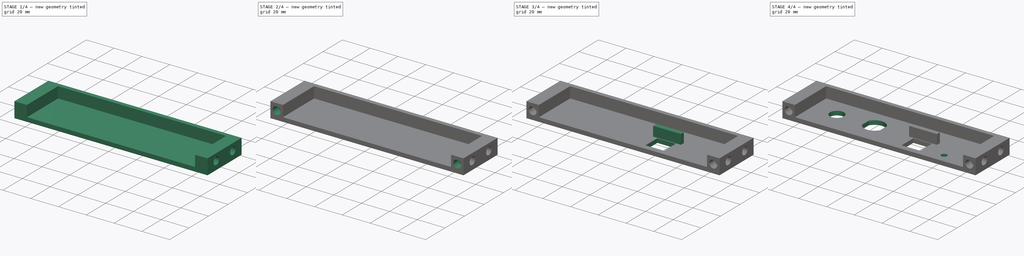
[diagram: build sequence overview — one tinted view per stage of 4, left to right]
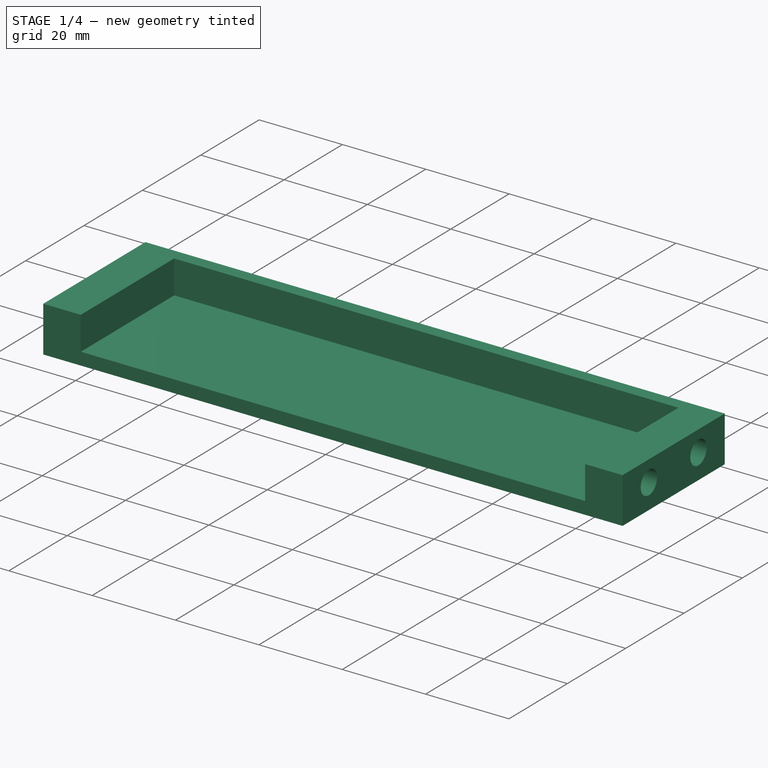
[diagram: stage 1 of 4 — iso view after this stage's code; geometry added in this stage tinted green]
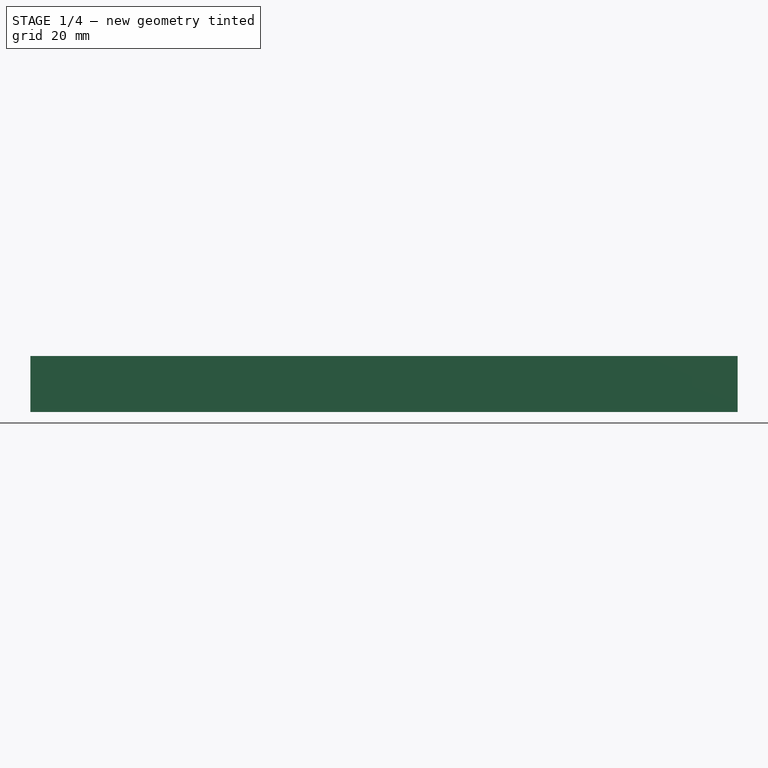
[diagram: stage 1 of 4 — front view after this stage's code; geometry added in this stage tinted green]
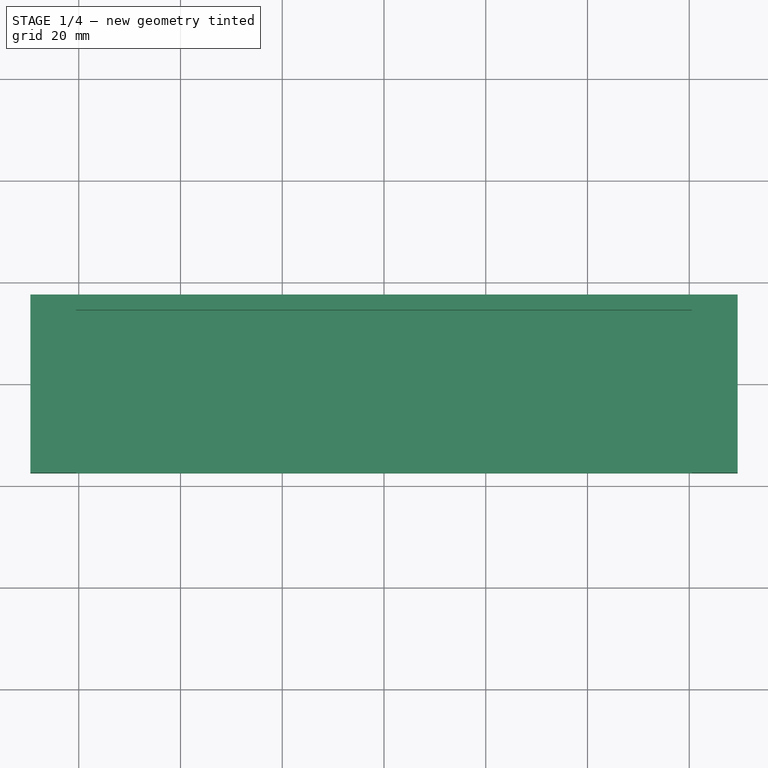
[diagram: stage 1 of 4 — top view after this stage's code; geometry added in this stage tinted green]
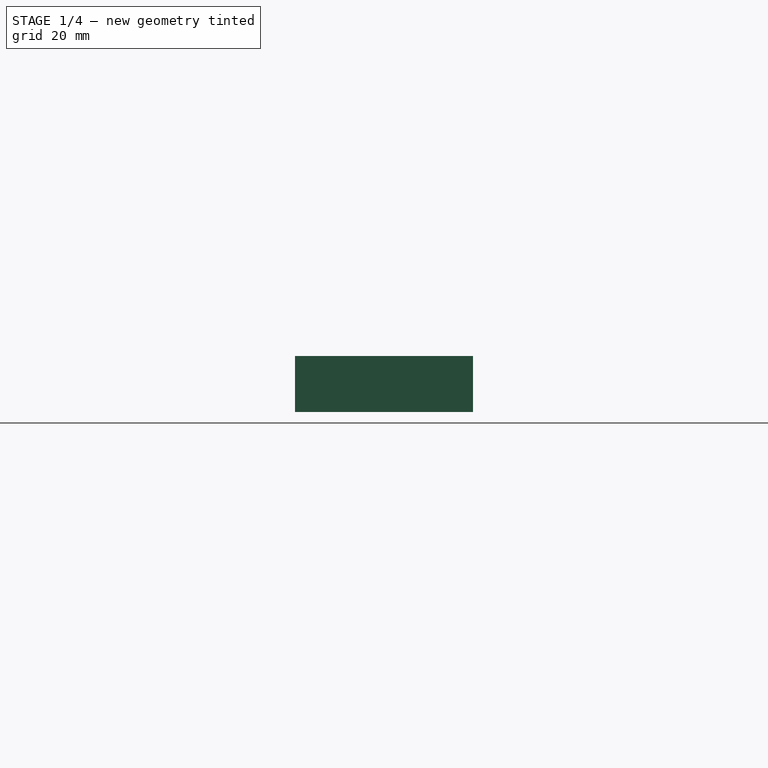
[diagram: stage 1 of 4 — right view after this stage's code; geometry added in this stage tinted green]
FCSTD DOCUMENT
Label: ElectronicEnclosurePowerCordSide
objects: Sketcher::SketchObject×9, PartDesign::Pocket×7, PartDesign::Mirrored×3, PartDesign::Pad×2, PartDesign::MultiTransform×1
note: 31 computed .brp shape members not serialized (recipe doc carries the construction recipe); baked Part::Feature solids carry a one-line shape summary decoded from their .brp

FEATURE [Sketcher::SketchObject] Sketch
  sketch-geometry (4):
    g0: LineSegment StartX=-69.5 StartY=-17.5 StartZ=0 EndX=69.5 EndY=-17.5 EndZ=0
    g1: LineSegment StartX=69.5 StartY=-17.5 StartZ=0 EndX=69.5 EndY=17.5 EndZ=0
    g2: LineSegment StartX=69.5 StartY=17.5 StartZ=0 EndX=-69.5 EndY=17.5 EndZ=0
    g3: LineSegment StartX=-69.5 StartY=17.5 StartZ=0 EndX=-69.5 EndY=-17.5 EndZ=0
  constraints (11):
    c: Coincident(g0,g1)
    c: Coincident(g1,g2)
    c: Coincident(g2,g3)
    c: Coincident(g3,g0)
    c: Horizontal(g0)
    c: Horizontal(g2)
    c: Vertical(g1)
    c: Vertical(g3)
    c: Symmetric(g0,g1,g-1)
    c: DistanceY(g1) = 35
    c: DistanceX(g2) = -139
FEATURE [PartDesign::Pad] Pad
  Length = 11
  Length2 = 100
  Sketch = -> Sketch
  Type = 0
FEATURE [Sketcher::SketchObject] Sketch001
  ExternalGeometry = -> [Pad]
  Placement = pos=(0,0,11) rot=(0,0,1;0rad)
  Support = -> Pad [Face6]
  sketch-geometry (4):
    g0: LineSegment StartX=-60.5 StartY=-17.5 StartZ=0 EndX=60.5 EndY=-17.5 EndZ=0
    g1: LineSegment StartX=60.5 StartY=-17.5 StartZ=0 EndX=60.5 EndY=14.5 EndZ=0
    g2: LineSegment StartX=60.5 StartY=14.5 StartZ=0 EndX=-60.5 EndY=14.5 EndZ=0
    g3: LineSegment StartX=-60.5 StartY=14.5 StartZ=0 EndX=-60.5 EndY=-17.5 EndZ=0
  constraints (12):
    c: Coincident(g0,g1)
    c: Coincident(g1,g2)
    c: Coincident(g2,g3)
    c: Coincident(g3,g0)
    c: Horizontal(g0)
    c: Horizontal(g2)
    c: Vertical(g1)
    c: Vertical(g3)
    c: Symmetric(g2,g1,g-2)
    c: DistanceX(g2,g-3) = -9
    c: DistanceY(g2,g-3) = 3
    c: PointOnObject(g-3,g0)
FEATURE [PartDesign::Pocket] Pocket
  Length = 8
  Sketch = -> Sketch001
  Type = 0
FEATURE [Sketcher::SketchObject] Sketch002
  Placement = pos=(69.5,0,0) rot=(0.57735,0.57735,0.57735;2.0944rad)
  Support = -> Pocket [Face1]
  sketch-geometry (3):
    g0: Circle CenterX=-8.5 CenterY=6 CenterZ=0 NormalX=0 NormalY=0 NormalZ=1 Radius=2.8
    g1: Circle CenterX=8.5 CenterY=6 CenterZ=0 NormalX=0 NormalY=0 NormalZ=1 Radius=2.8
    g2: LineSegment [constr] StartX=-8.5 StartY=6 StartZ=0 EndX=8.5 EndY=6 EndZ=0
  constraints (8):
    c: Equal(g0,g1)
    c: Coincident(g2,g0)
    c: Coincident(g2,g1)
    c: Horizontal(g2)
    c: Symmetric(g0,g1,g-2)
    c: DistanceY(g0) = 6
    c: DistanceX(g2) = 17
    c: Radius(g1) = 2.8
FEATURE [PartDesign::Pocket] Pocket001
  Length = 6.5
  Sketch = -> Sketch002
  Type = 0
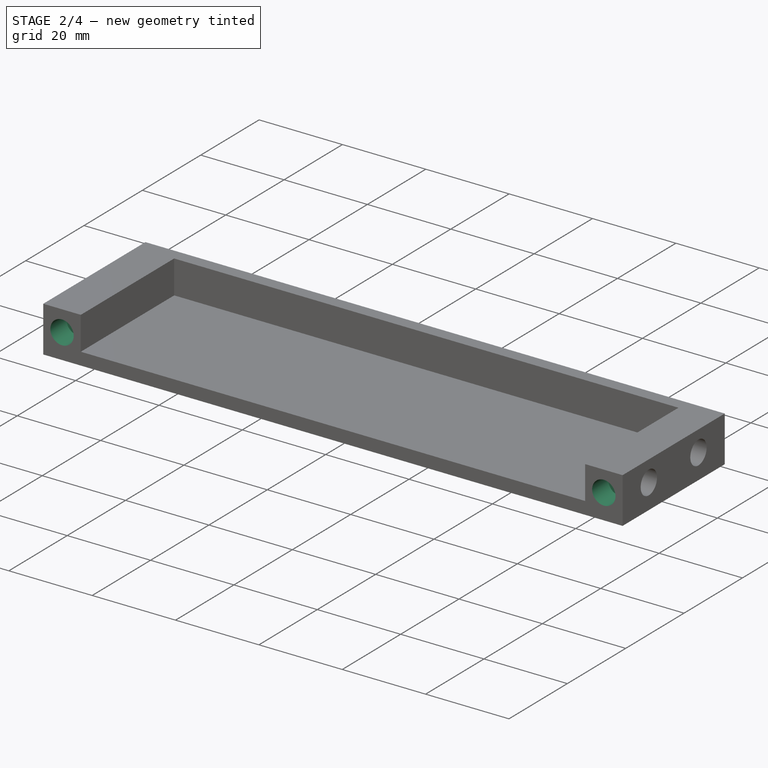
[diagram: stage 2 of 4 — iso view after this stage's code; geometry added in this stage tinted green]
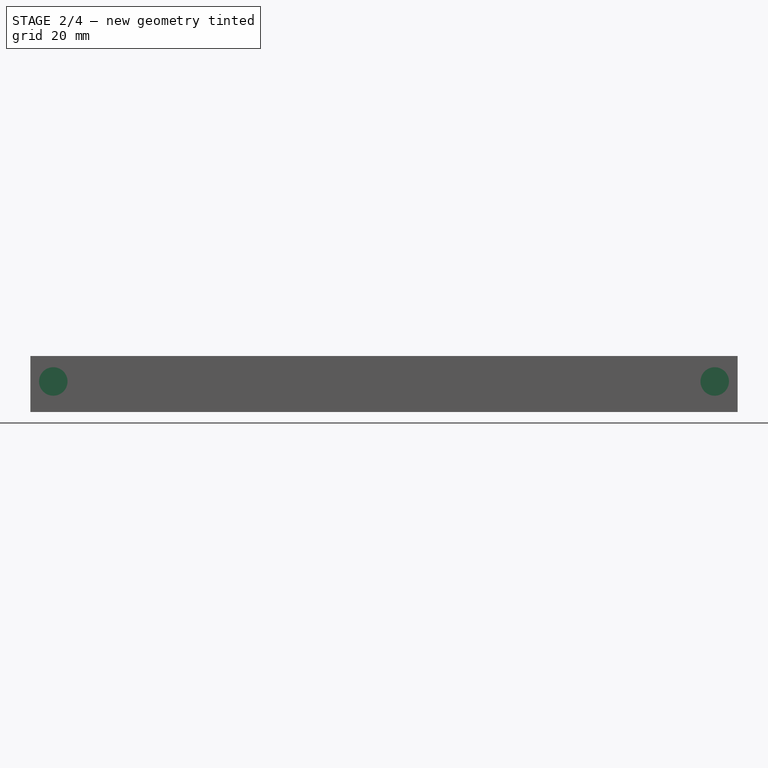
[diagram: stage 2 of 4 — front view after this stage's code; geometry added in this stage tinted green]
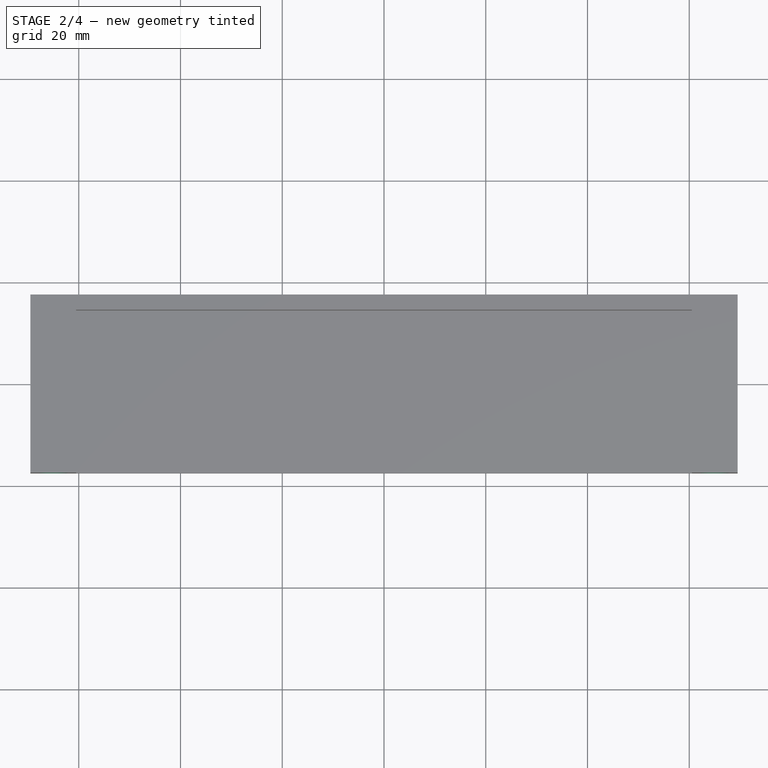
[diagram: stage 2 of 4 — top view after this stage's code; geometry added in this stage tinted green]
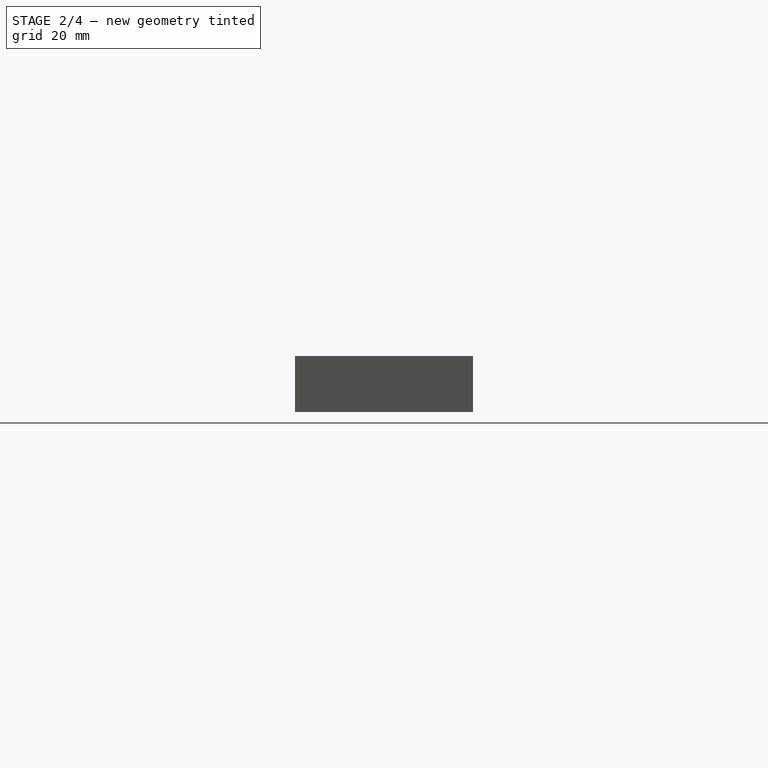
[diagram: stage 2 of 4 — right view after this stage's code; geometry added in this stage tinted green]
FEATURE [PartDesign::Mirrored] Mirrored
  Originals = -> [Pocket001]
  StdMirrorPlane = YZ
FEATURE [Sketcher::SketchObject] Sketch003
  ExternalGeometry = -> [Mirrored]
  Placement = pos=(0,-17.5,0) rot=(1,0,0;1.5708rad)
  Support = -> Mirrored [Face1]
  sketch-geometry (2):
    g0: Circle CenterX=65 CenterY=6 CenterZ=0 NormalX=0 NormalY=0 NormalZ=1 Radius=2.8
    g1: LineSegment [constr] StartX=65 StartY=6 StartZ=0 EndX=65 EndY=11 EndZ=0
  constraints (5):
    c: Radius(g0) = 2.8
    c: Coincident(g1,g0)
    c: Vertical(g1)
    c: Symmetric(g-3,g-3,g1)
    c: DistanceY(g0) = 6
FEATURE [PartDesign::Pocket] Pocket002
  Length = 5.5
  Sketch = -> Sketch003
  Type = 0
FEATURE [PartDesign::Mirrored] Mirrored001
  StdMirrorPlane = YZ
FEATURE [PartDesign::Mirrored] Mirrored002
  StdMirrorPlane = XZ
FEATURE [PartDesign::MultiTransform] MultiTransform
  Originals = -> [Pocket002]
  Transformations = -> [Mirrored001,Mirrored002]
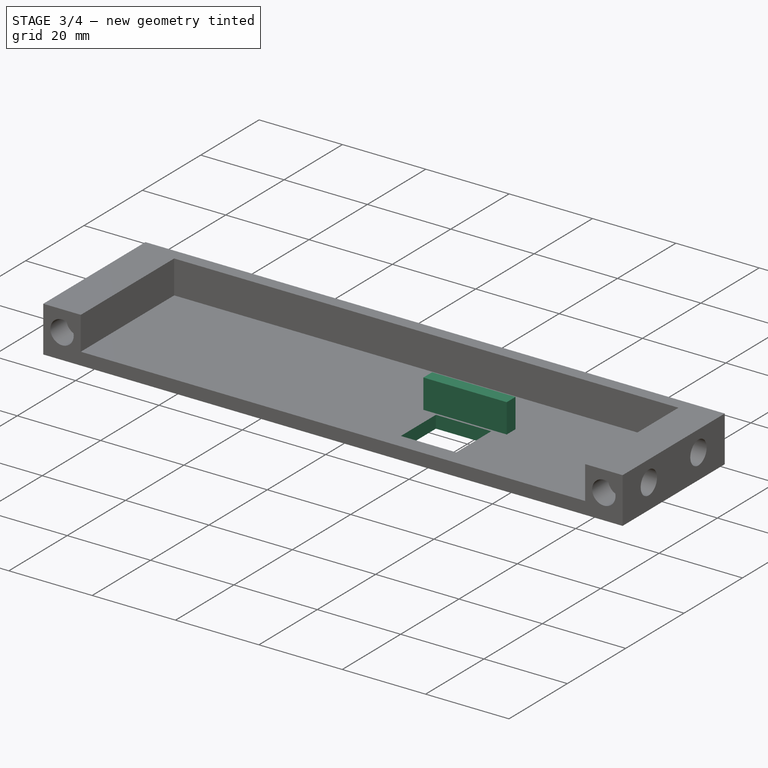
[diagram: stage 3 of 4 — iso view after this stage's code; geometry added in this stage tinted green]
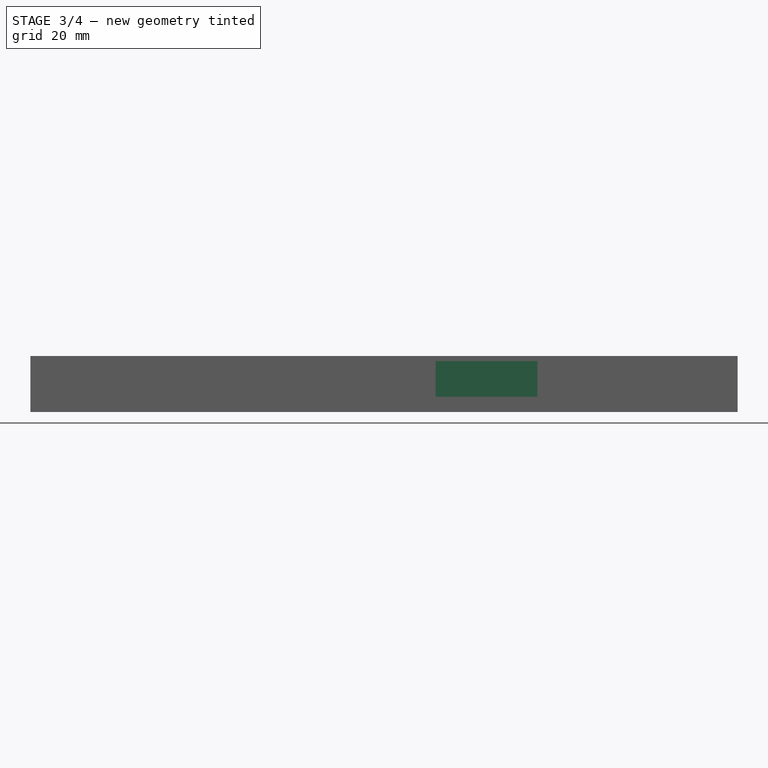
[diagram: stage 3 of 4 — front view after this stage's code; geometry added in this stage tinted green]
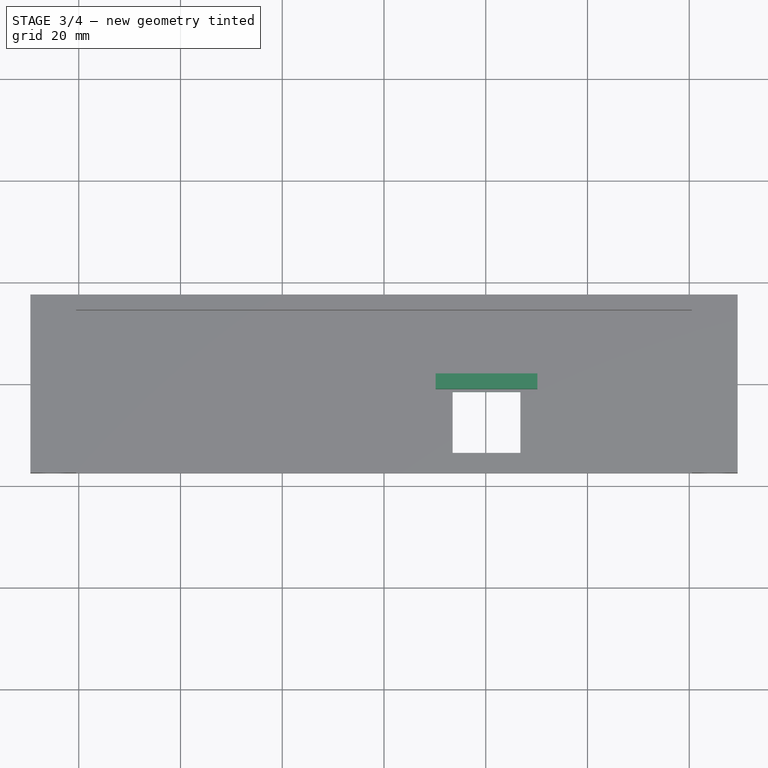
[diagram: stage 3 of 4 — top view after this stage's code; geometry added in this stage tinted green]
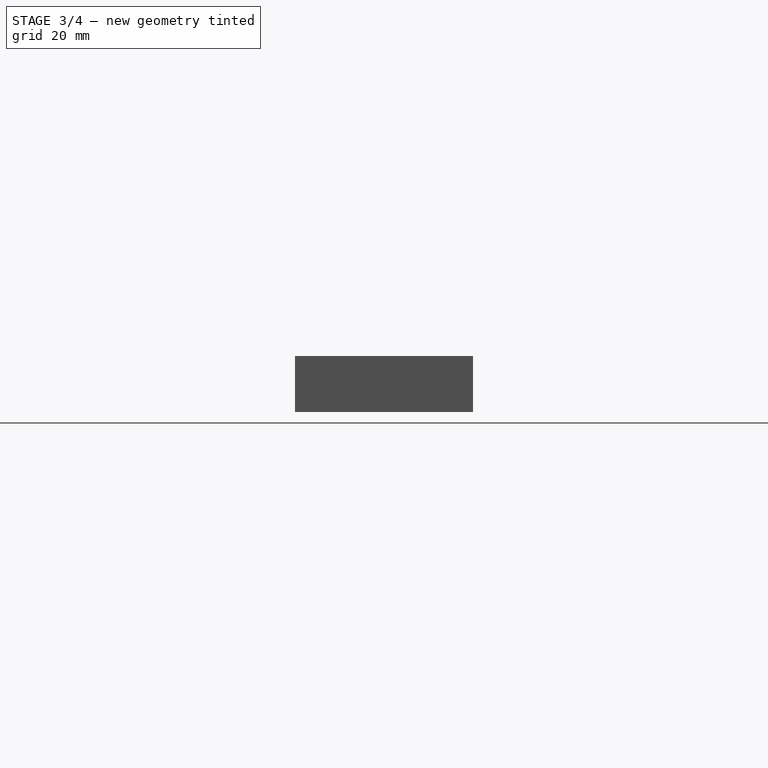
[diagram: stage 3 of 4 — right view after this stage's code; geometry added in this stage tinted green]
FEATURE [Sketcher::SketchObject] Sketch004
  ExternalGeometry = -> [MultiTransform]
  Placement = pos=(0,0,3) rot=(0,0,1;0rad)
  Support = -> MultiTransform [Face10]
  sketch-geometry (4):
    g0: LineSegment StartX=10.15 StartY=2 StartZ=0 EndX=30.15 EndY=2 EndZ=0
    g1: LineSegment StartX=30.15 StartY=2 StartZ=0 EndX=30.15 EndY=-1 EndZ=0
    g2: LineSegment StartX=30.15 StartY=-1 StartZ=0 EndX=10.15 EndY=-1 EndZ=0
    g3: LineSegment StartX=10.15 StartY=-1 StartZ=0 EndX=10.15 EndY=2 EndZ=0
  constraints (12):
    c: Coincident(g0,g1)
    c: Coincident(g1,g2)
    c: Coincident(g2,g3)
    c: Coincident(g3,g0)
    c: Horizontal(g0)
    c: Horizontal(g2)
    c: Vertical(g1)
    c: Vertical(g3)
    c: DistanceX(g0) = 20
    c: DistanceY(g3) = 3
    c: DistanceX(g1,g-3) = 30.35
    c: DistanceY(g2,g-3) = -16.5
FEATURE [PartDesign::Pad] Pad001
  Length = 7
  Length2 = 100
  Sketch = -> Sketch004
  Type = 0
FEATURE [Sketcher::SketchObject] Sketch005
  ExternalGeometry = -> [Pad001]
  Placement = pos=(0,0,3) rot=(0,0,1;0rad)
  Support = -> Pad001 [Face10]
  sketch-geometry (5):
    g0: LineSegment StartX=13.5 StartY=-1.5 StartZ=0 EndX=26.8 EndY=-1.5 EndZ=0
    g1: LineSegment StartX=26.8 StartY=-1.5 StartZ=0 EndX=26.8 EndY=-13.5 EndZ=0
    g2: LineSegment StartX=26.8 StartY=-13.5 StartZ=0 EndX=13.5 EndY=-13.5 EndZ=0
    g3: LineSegment StartX=13.5 StartY=-13.5 StartZ=0 EndX=13.5 EndY=-1.5 EndZ=0
    g4: LineSegment [constr] StartX=20.15 StartY=-1.5 StartZ=0 EndX=20.15 EndY=-1 EndZ=0
  constraints (14):
    c: Coincident(g0,g1)
    c: Coincident(g1,g2)
    c: Coincident(g2,g3)
    c: Coincident(g3,g0)
    c: Horizontal(g0)
    c: Horizontal(g2)
    c: Vertical(g1)
    c: Vertical(g3)
    c: DistanceY(g1) = -12
    c: DistanceX(g2) = -13.3
    c: DistanceY(g0,g-3) = 0.5
    c: Vertical(g4)
    c: Symmetric(g0,g0,g4)
    c: Symmetric(g-3,g-3,g4)
FEATURE [PartDesign::Pocket] Pocket003
  Length = 5
  Sketch = -> Sketch005
  Type = 1
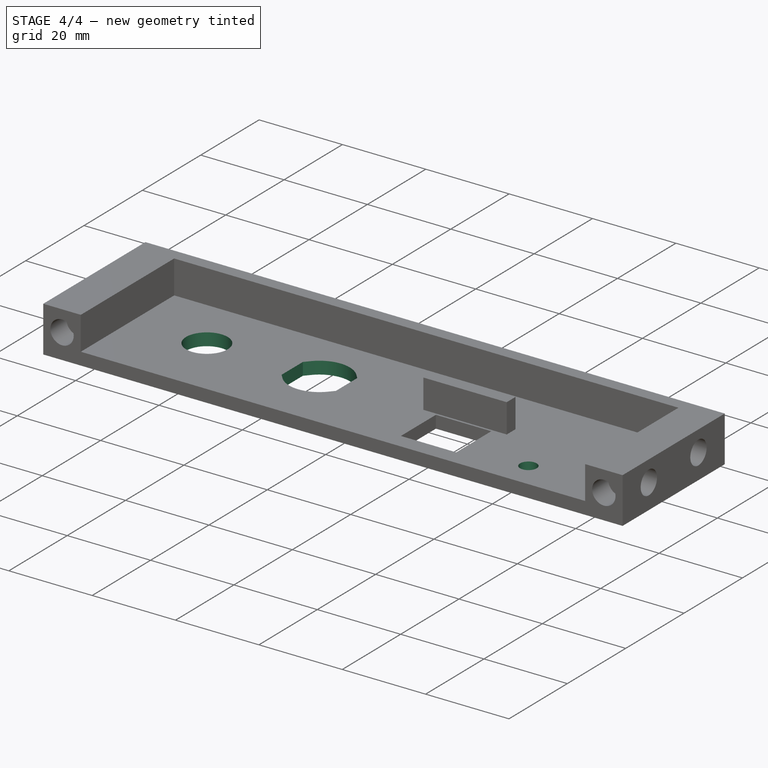
[diagram: stage 4 of 4 — iso view after this stage's code; geometry added in this stage tinted green]
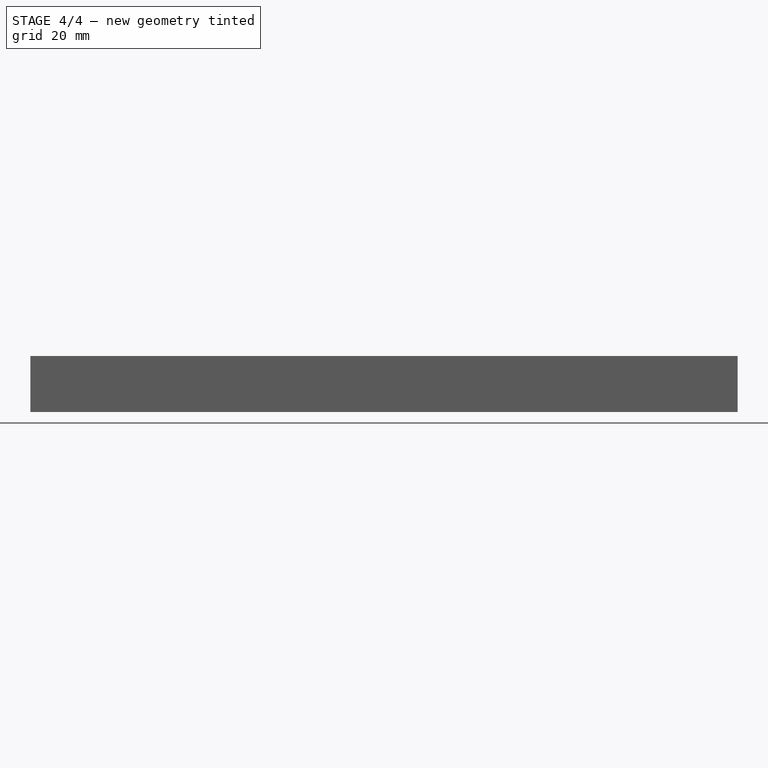
[diagram: stage 4 of 4 — front view after this stage's code; geometry added in this stage tinted green]
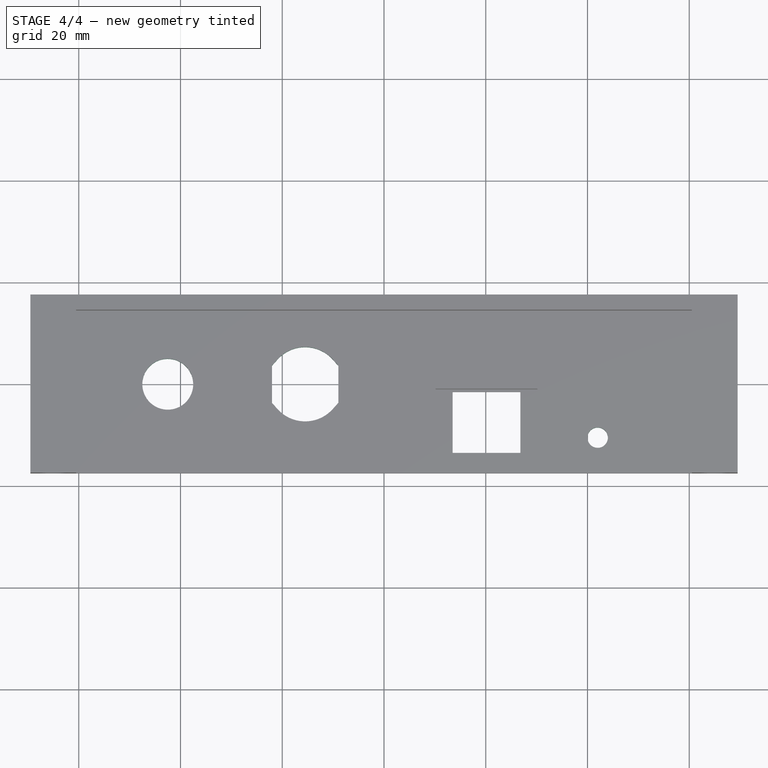
[diagram: stage 4 of 4 — top view after this stage's code; geometry added in this stage tinted green]
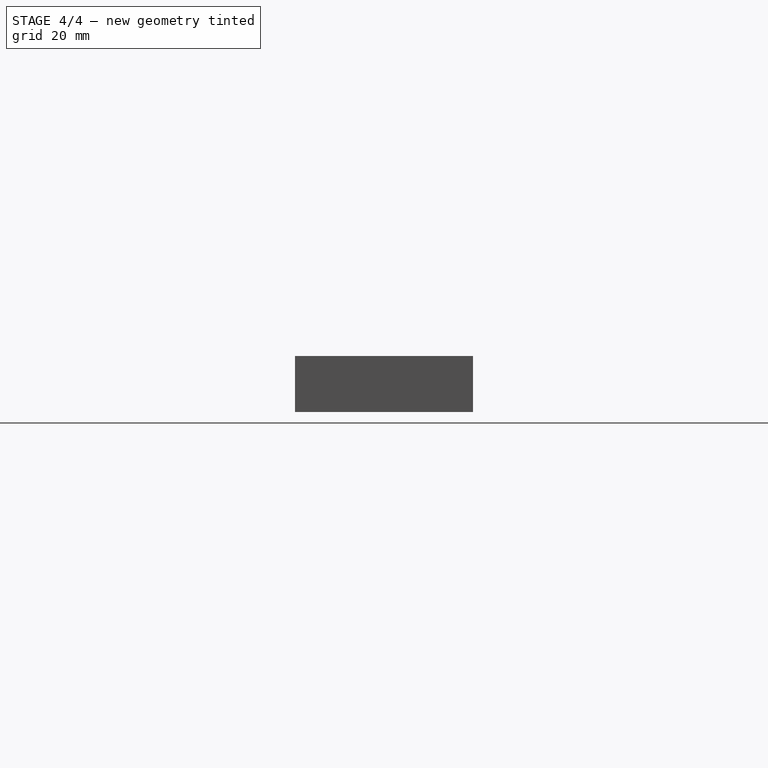
[diagram: stage 4 of 4 — right view after this stage's code; geometry added in this stage tinted green]
FEATURE [Sketcher::SketchObject] Sketch006
  ExternalGeometry = -> [Pocket003]
  Placement = pos=(0,0,3) rot=(0,0,1;0rad)
  Support = -> Pocket003 [Face9]
  sketch-geometry (1):
    g0: Circle CenterX=-42.5 CenterY=0 CenterZ=0 NormalX=0 NormalY=0 NormalZ=1 Radius=5
  constraints (3):
    c: Radius(g0) = 5
    c: DistanceY(g-3,g0) = 17.5
    c: DistanceX(g-3,g0) = 27
FEATURE [PartDesign::Pocket] Pocket004
  Length = 5
  Sketch = -> Sketch006
  Type = 1
FEATURE [Sketcher::SketchObject] Sketch007
  ExternalGeometry = -> [Pocket004]
  Placement = pos=(0,0,3) rot=(0,0,1;0rad)
  Support = -> Pocket004 [Face9]
  sketch-geometry (9):
    g0: ArcOfCircle CenterX=-15.5 CenterY=0 CenterZ=0 NormalX=0 NormalY=0 NormalZ=1 Radius=7.3 StartAngle=0.726347 EndAngle=2.41525
    g1: ArcOfCircle CenterX=-15.5 CenterY=0 CenterZ=0 NormalX=0 NormalY=0 NormalZ=1 Radius=7.3 StartAngle=3.86794 EndAngle=5.55684
    g2: LineSegment StartX=-20.9575 StartY=4.84825 StartZ=0 EndX=-22.022 EndY=3.64999 EndZ=0
    g3: LineSegment StartX=-22.022 StartY=3.64999 StartZ=0 EndX=-22.022 EndY=-3.65001 EndZ=0
    g4: LineSegment StartX=-22.022 StartY=-3.65001 StartZ=0 EndX=-20.9575 EndY=-4.84825 EndZ=0
    g5: LineSegment StartX=-10.0425 StartY=4.84825 StartZ=0 EndX=-8.978 EndY=3.64999 EndZ=0
    g6: LineSegment StartX=-8.978 StartY=3.64999 StartZ=0 EndX=-8.978 EndY=-3.65001 EndZ=0
    g7: LineSegment StartX=-8.978 StartY=-3.65001 StartZ=0 EndX=-10.0425 EndY=-4.84825 EndZ=0
    g8: LineSegment [constr] StartX=-15.5 StartY=0 StartZ=0 EndX=-15.5 EndY=7.3 EndZ=0
  constraints (27):
    c: Equal(g1,g0)
    c: Tangent(g0,g2)
    c: Coincident(g2,g3)
    c: Vertical(g3)
    c: Coincident(g3,g4)
    c: Coincident(g4,g1)
    c: Tangent(g4,g1)
    c: Tangent(g0,g5)
    c: Coincident(g5,g6)
    c: Vertical(g6)
    c: Coincident(g6,g7)
    c: Coincident(g7,g1)
    c: Tangent(g7,g1)
    c: Equal(g3,g6)
    c: Equal(g4,g7)
    c: Equal(g7,g5)
    c: Equal(g5,g2)
    c: DistanceY(g3) = -7.3
    c: DistanceX(g2,g5) = 13.044
    c: Coincident(g8,g0)
    c: PointOnObject(g8,g0)
    c: Vertical(g8)
    c: PointOnObject(g1,g8)
    c: Coincident(g1,g0)
    c: Radius(g1) = 7.3
    c: DistanceX(g0,g-3) = -54
    c: DistanceY(g0,g-3) = -17.5
FEATURE [PartDesign::Pocket] Pocket005
  Length = 5
  Sketch = -> Sketch007
  Type = 1
FEATURE [Sketcher::SketchObject] Sketch008
  ExternalGeometry = -> [Pocket005]
  Placement = pos=(0,0,3) rot=(0,0,1;0rad)
  Support = -> Pocket005 [Face9]
  sketch-geometry (1):
    g0: Circle CenterX=42 CenterY=-10.5 CenterZ=0 NormalX=0 NormalY=0 NormalZ=1 Radius=2
  constraints (3):
    c: Radius(g0) = 2
    c: DistanceY(g-3,g0) = 7
    c: DistanceX(g0,g-3) = 18.5
FEATURE [PartDesign::Pocket] Pocket006
  Length = 5
  Sketch = -> Sketch008
  Type = 1
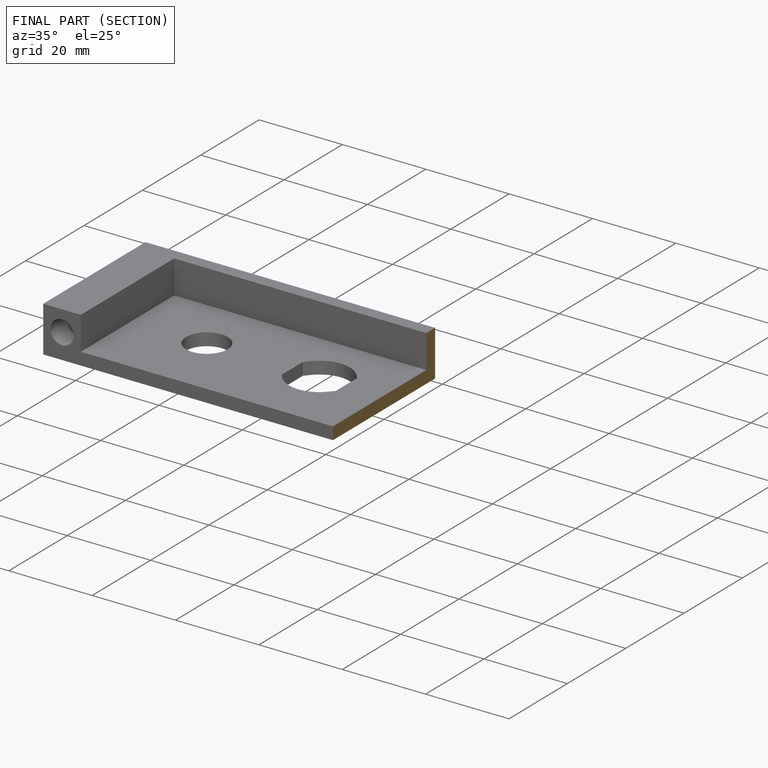
[diagram: finished part — half-section view (interior)]
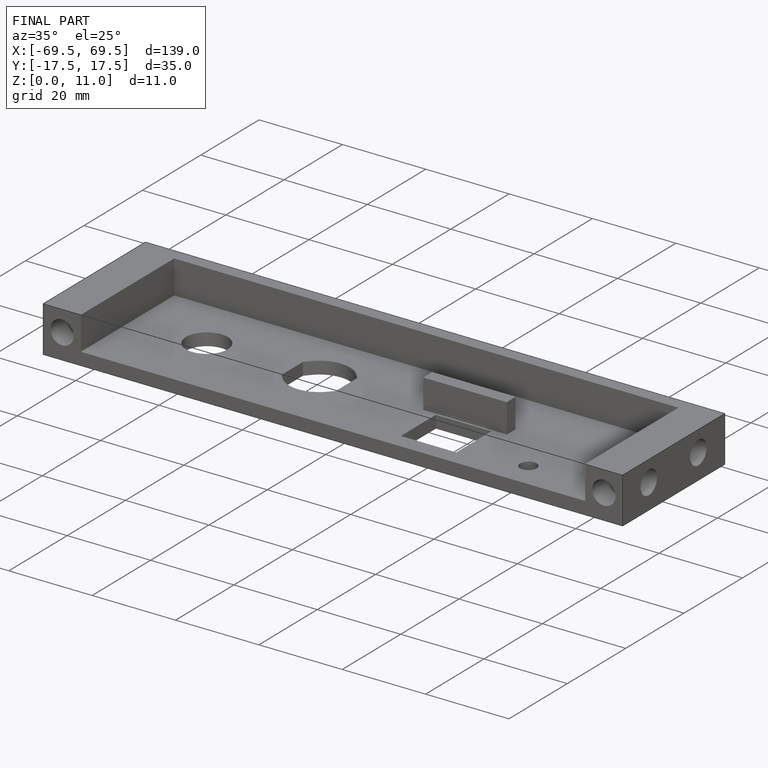
[diagram: finished part — iso view with bounding-box wireframe]
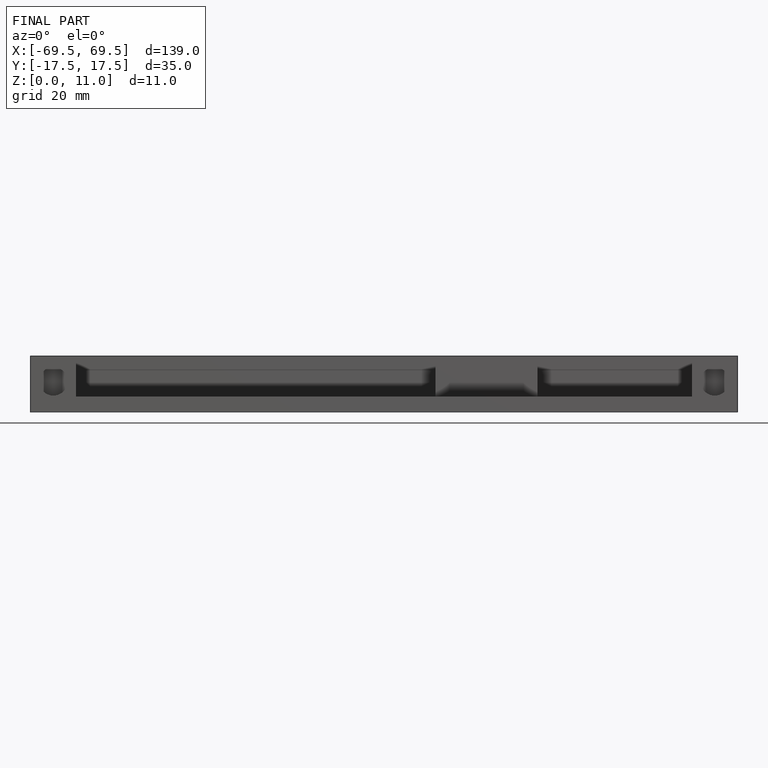
[diagram: finished part — front view with bounding-box wireframe]
